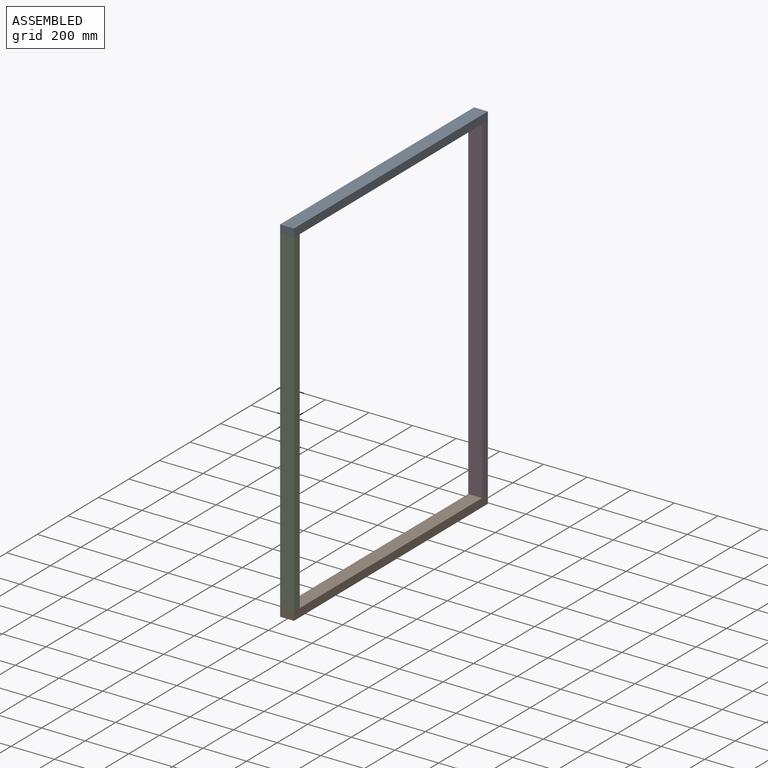
[diagram: assembled view]
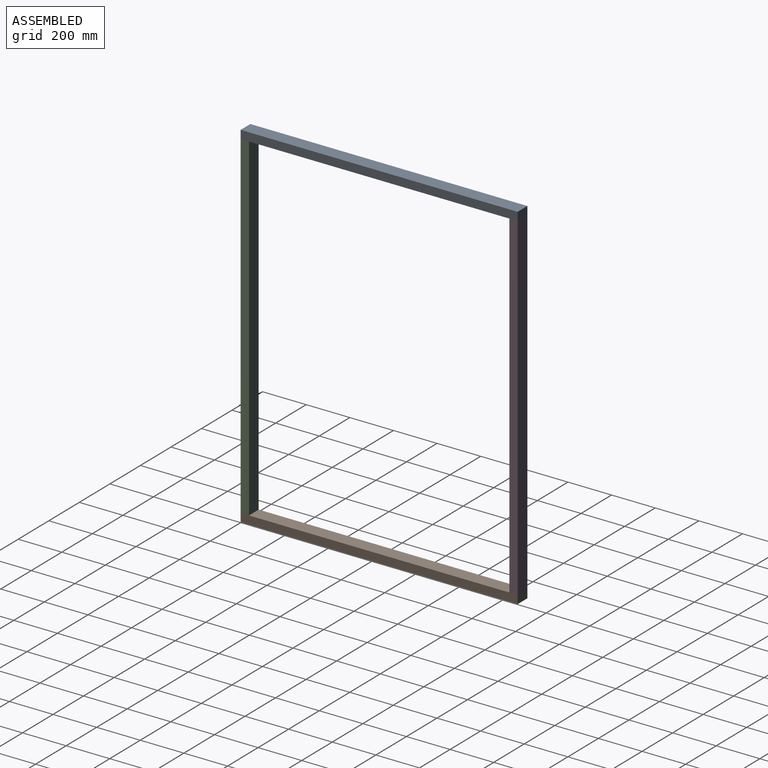
[diagram: assembled view, second angle]
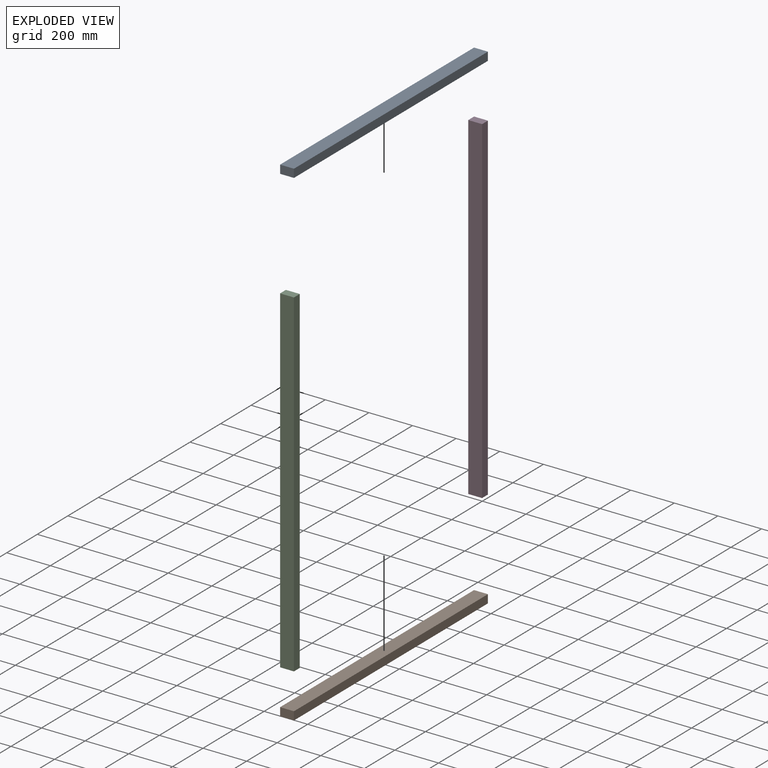
[diagram: exploded view]
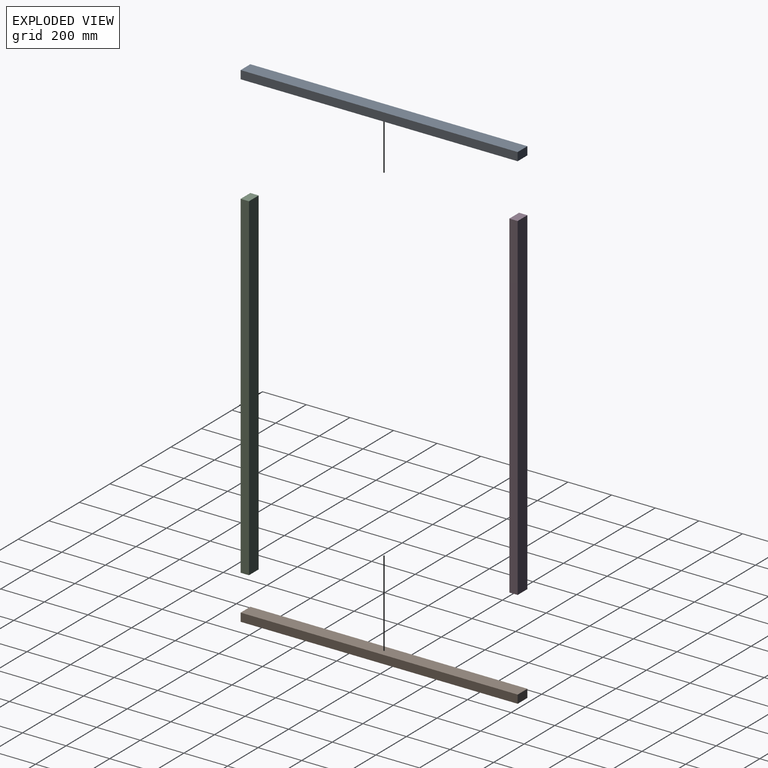
[diagram: exploded view, second angle]
ASSEMBLY  parts=4 mates=3
PART A: 6 faces, bbox 63.5x38.1x1270 mm
  f0: plane 63.5x38.1mm, normal (0,0,-1), area 2419.4mm2, adj f1,f3,f4,f5
  f1: plane 1270x38.1mm, normal (1,0,0), area 48387mm2, adj f0,f2,f4,f5
  f2: plane 63.5x38.1mm, normal (0,0,1), area 2419.4mm2, adj f1,f3,f4,f5
  f3: plane 1270x38.1mm, normal (-1,0,0), area 48387mm2, adj f0,f2,f4,f5
  f4: plane 1270x63.5mm, normal (0,-1,0), area 80645mm2, adj f0,f1,f2,f3
  f5: plane 1270x63.5mm, normal (0,1,0), area 80645mm2, adj f0,f1,f2,f3
PART B: same geometry as A
PART C: 6 faces, bbox 63.5x38.1x1549.4 mm
  f0: plane 63.5x38.1mm, normal (0,0,-1), area 2419.4mm2, adj f1,f3,f4,f5
  f1: plane 1549.4x38.1mm, normal (1,0,0), area 59032.1mm2, adj f0,f2,f4,f5
  f2: plane 63.5x38.1mm, normal (0,0,1), area 2419.4mm2, adj f1,f3,f4,f5
  f3: plane 1549.4x38.1mm, normal (-1,0,0), area 59032.1mm2, adj f0,f2,f4,f5
  f4: plane 1549.4x63.5mm, normal (0,-1,0), area 98386.9mm2, adj f0,f1,f2,f3
  f5: plane 1549.4x63.5mm, normal (0,1,0), area 98386.9mm2, adj f0,f1,f2,f3
PART D: same geometry as C
PLACE A rot(axis=(1,0,0),90deg) t=(3525.6,-585.98,1286.09)mm
PLACE B rot(axis=(1,0,0),90deg) t=(3525.6,-585.98,-301.41)mm
PLACE C t=(3525.6,-618.32,898.15)mm
PLACE D t=(3525.6,613.58,898.15)mm
MATE fastened C.f2 <-> A.f4  axis (0,0,1) through (313.01,-656.42,1247.99)mm
MATE fastened D.f2 <-> A.f4  axis (0,0,1) through (376.51,613.58,1247.99)mm
MATE fastened D.f0 <-> B.f5  axis (0,0,-1) through (313.01,613.58,-301.41)mm
